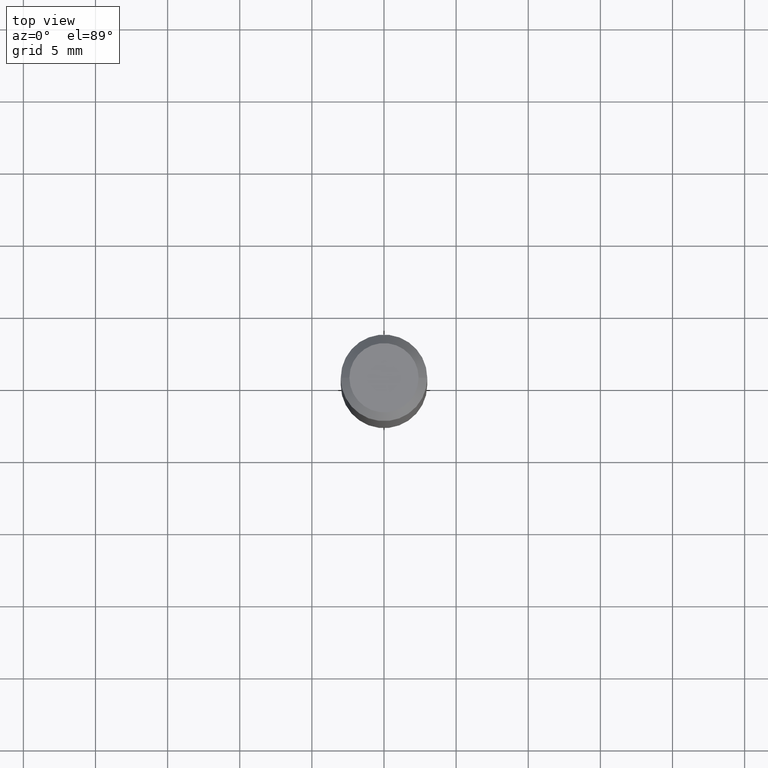
[diagram: clean part render]
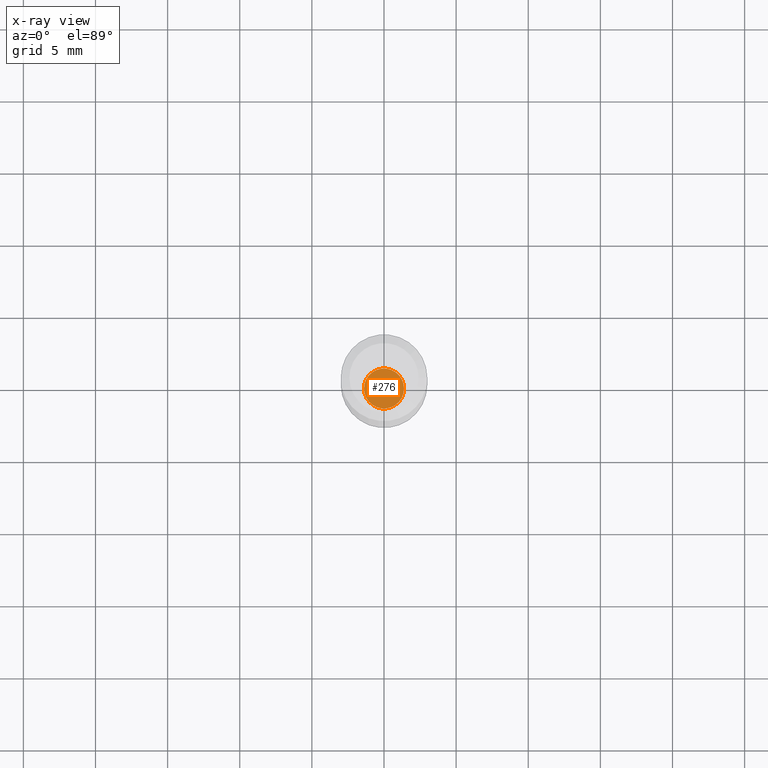
[diagram: x-ray — body ghosted, one internal face saturated and labeled with its STEP entity id]
A machine part, top view, then the same camera in x-ray: the body is ghosted and one INTERNAL B-rep face — a face not visible from any outside direction — is saturated and labeled: STEP entity #276.
In plain terms, the highlighted planar face has unit normal (-0, 0, 1).
Its self-contained STEP definition (entity closure, byte-faithful):
#69 = VERTEX_POINT ( 'NONE', #261 ) ;
#129 = DIRECTION ( 'NONE',  ( -2.438088387897960049E-29, 3.491481338843145188E-15, 1.000000000000000000 ) ) ;
#131 = AXIS2_PLACEMENT_3D ( 'NONE', #368, #129, #289 ) ;
#150 = DIRECTION ( 'NONE',  ( 1.000000000000000000, -6.982962677686265133E-15, 0.000000000000000000 ) ) ;
#167 = EDGE_CURVE ( 'NONE', #510, #69, #229, .T. ) ;
#229 = CIRCLE ( 'NONE', #309, 0.05460000000000000270 ) ;
#261 = CARTESIAN_POINT ( 'NONE',  ( -0.05460000000000000270, -5.574590306514388579E-15, -1.708499999999999908 ) ) ;
#276 = ADVANCED_FACE ( 'NONE', ( #453 ), #414, .F. ) ;
#289 = DIRECTION ( 'NONE',  ( 1.000000000000000000, -6.982962677686265922E-15, 4.876176775795935793E-29 ) ) ;
#292 = DIRECTION ( 'NONE',  ( -2.445468806185136597E-29, 3.491481338843145583E-15, 1.000000000000000000 ) ) ;
#298 = ORIENTED_EDGE ( 'NONE', *, *, #359, .F. ) ;
#309 = AXIS2_PLACEMENT_3D ( 'NONE', #473, #515, #150 ) ;
#345 = CARTESIAN_POINT ( 'NONE',  ( 4.178083455367305580E-29, -5.965195867413513564E-15, -1.708499999999999908 ) ) ;
#354 = AXIS2_PLACEMENT_3D ( 'NONE', #345, #292, #383 ) ;
#359 = EDGE_CURVE ( 'NONE', #69, #510, #496, .T. ) ;
#368 = CARTESIAN_POINT ( 'NONE',  ( 1.014731728767789487E-28, 2.583086728145814913E-15, -1.708500000000000130 ) ) ;
#383 = DIRECTION ( 'NONE',  ( 1.000000000000000000, -6.982962677686265133E-15, 0.000000000000000000 ) ) ;
#406 = ORIENTED_EDGE ( 'NONE', *, *, #167, .F. ) ;
#414 = PLANE ( 'NONE',  #131 ) ;
#415 = EDGE_LOOP ( 'NONE', ( #406, #298 ) ) ;
#453 = FACE_OUTER_BOUND ( 'NONE', #415, .T. ) ;
#473 = CARTESIAN_POINT ( 'NONE',  ( 4.178083455367305580E-29, -5.965195867413513564E-15, -1.708499999999999908 ) ) ;
#476 = CARTESIAN_POINT ( 'NONE',  ( 0.05460000000000000270, -6.346465629615183354E-15, -1.708499999999999908 ) ) ;
#496 = CIRCLE ( 'NONE', #354, 0.05460000000000000270 ) ;
#510 = VERTEX_POINT ( 'NONE', #476 ) ;
#515 = DIRECTION ( 'NONE',  ( -2.445468806185136597E-29, 3.491481338843145583E-15, 1.000000000000000000 ) ) ;